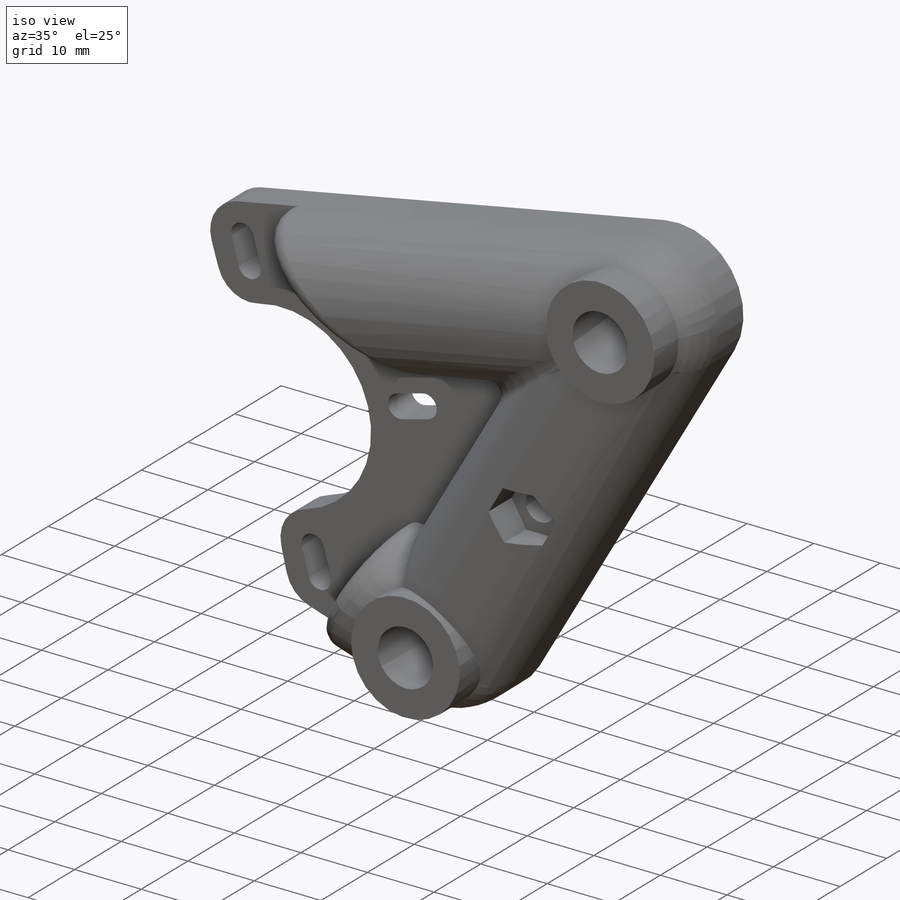
[diagram: iso view]
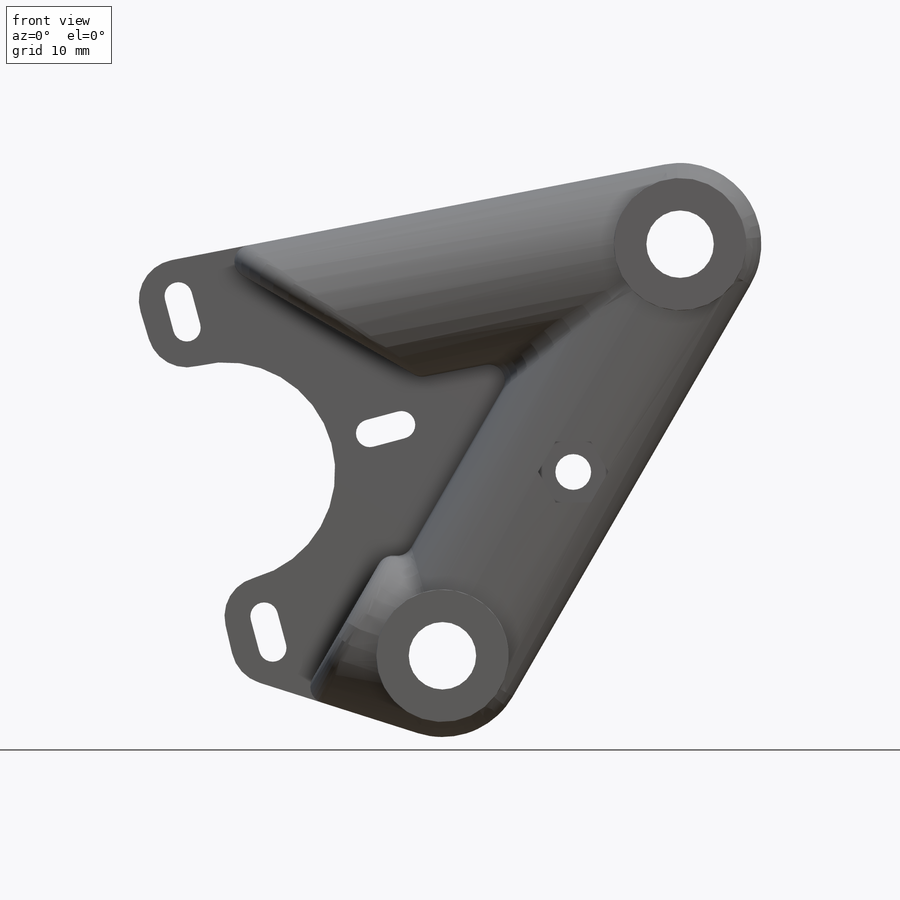
[diagram: front view]
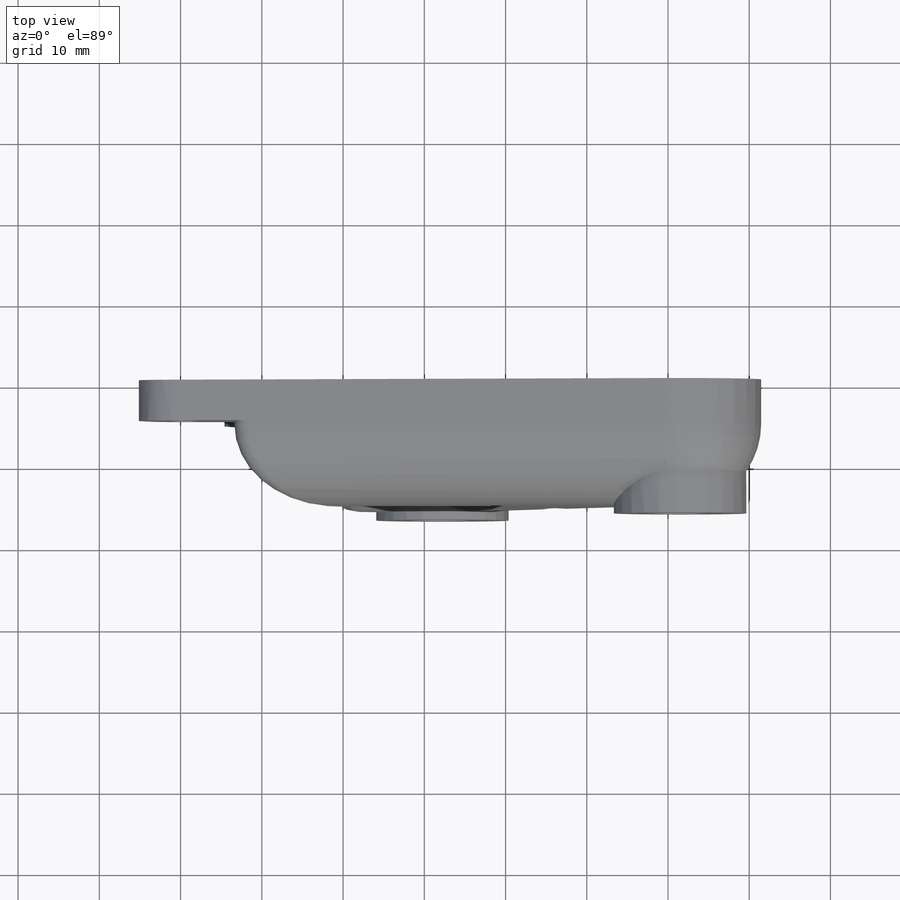
[diagram: top view]
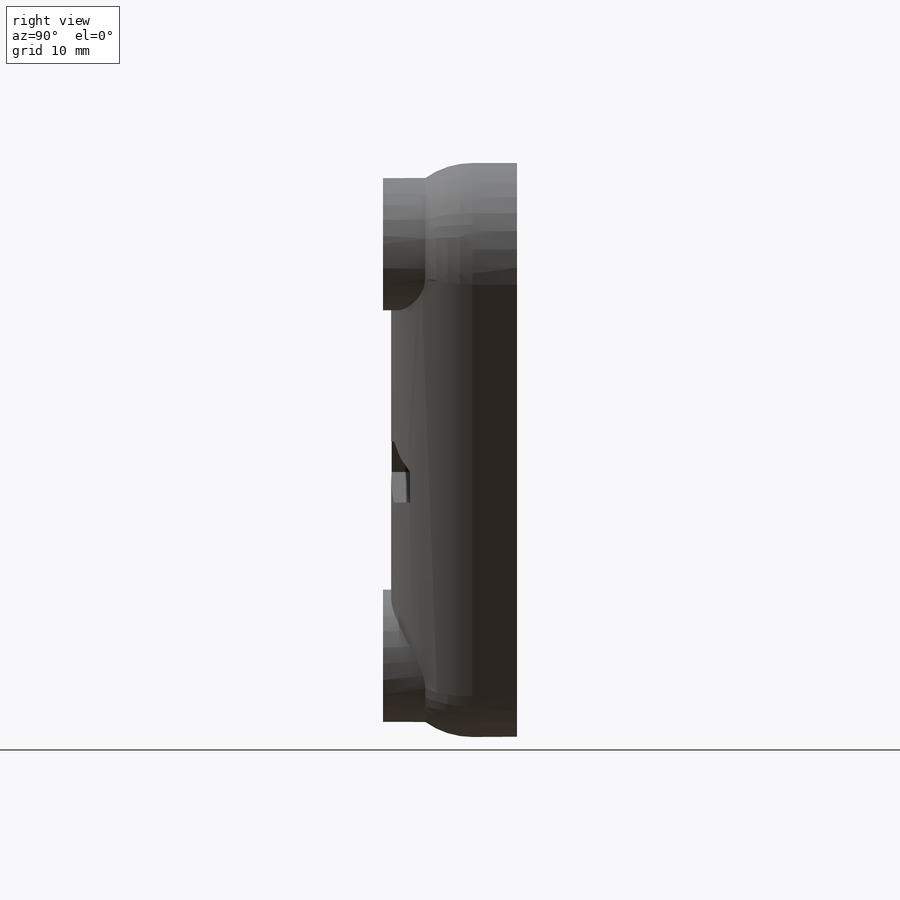
[diagram: right view]
SOLIDWORKS PART (.sldprt)
format: sldprt  version: not decoded by parser v0  size: 454,144 bytes
history: native  units: mm
features: fillet x5, sketch x4, extrude x3, material x1, plane x1, cut_extrude x1 (+11 scaffold rows collapsed)
feature tree (26):
  scaffold x11  (default folders/planes/origin — collapsed)
  material  "Material <not specified>"
  sketch  "Sketch1"  dims[c1.D1=14.65mm c1.D2=~3.716123mm c2.D1=1.7mm c2.D2=1.7mm c2.D4=3.4mm c2.D5=3.4mm c2.D6=3.4mm c2.D3=~3.535534mm c3.D4=0.5mm c3.D5=0.5mm c3.D6=0.5mm c3.D1=5.0mm c3.D2=5.0mm c3.D3=1.0mm c4.D2=5.0mm c4.D4=5.0mm c5.D2=0.0mm c5.D4=0.0mm c5.D5=0.0mm c5.D6=0.0mm c5.D7=0.0mm c5.D8=0.0mm c5.D1=1.0mm]
  extrude  "Boss-Extrude2"  Depth=5mm
  sketch  "Sketch4"  dims[c1.D1=20.0mm c1.D2=20.0mm c1.D3=20.0mm c1.D4=0.0mm c1.D5=0.0mm c1.D6=0.0mm c1.D7=0.0mm c1.D8=0.0mm c1.D9=0.0mm c1.D10=0.0mm c2.D1=20.0mm c2.D2=20.0mm c2.D3=0.0mm c2.D4=20.0mm c2.D5=20.0mm]
  extrude  "Boss-Extrude3"  Depth=10.5mm
  fillet  "Fillet4"  Radius=10mm
  fillet  "Fillet5"  Radius=10mm
  plane  "Plane1"  Offset=10.5mm
  sketch  "Sketch6"  dims[D1=4.0mm]
  extrude  "Boss-Extrude4"  Depth=1mm
  fillet  "Fillet8"  Radius=2mm
  sketch  "Sketch7"  dims[D1=7.5mm]
  cut_extrude  "Cut-Extrude3"  Depth=5mm
  fillet  "Fillet12"  Radius=2mm
  fillet  "Fillet13"  Radius=2mm
decode coverage: 13 of 13 modeling features carry decoded parameters
note: ~ marks probable driven/reference dimensions
note: suppression state not decoded; provenance and decode notes live in map.json
